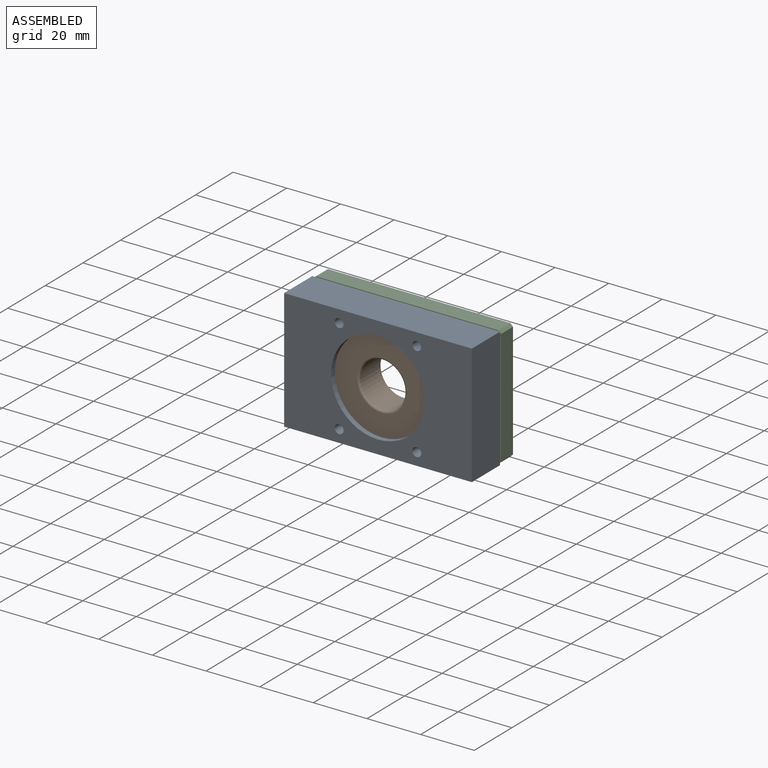
[diagram: assembled view]
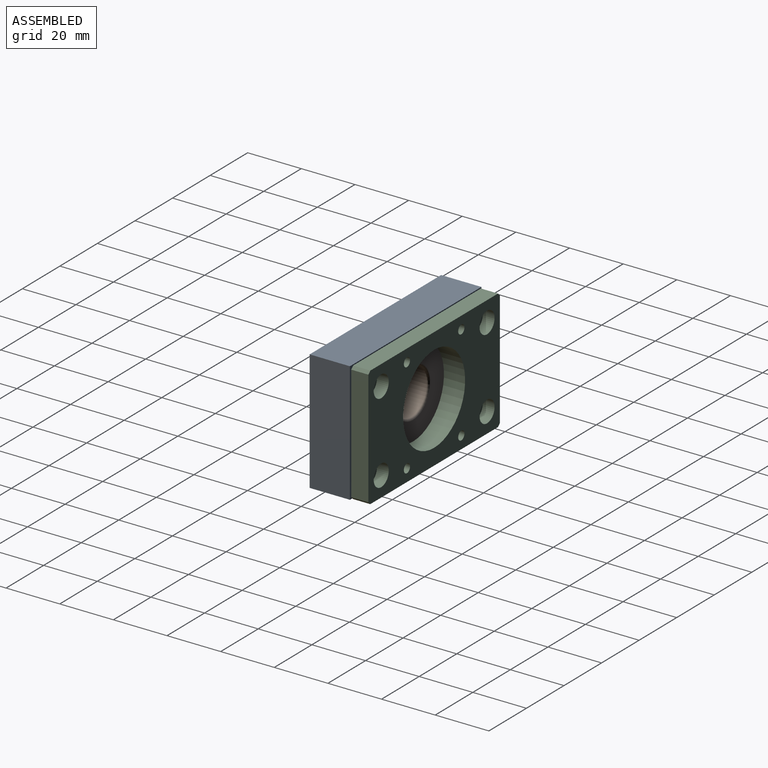
[diagram: assembled view, second angle]
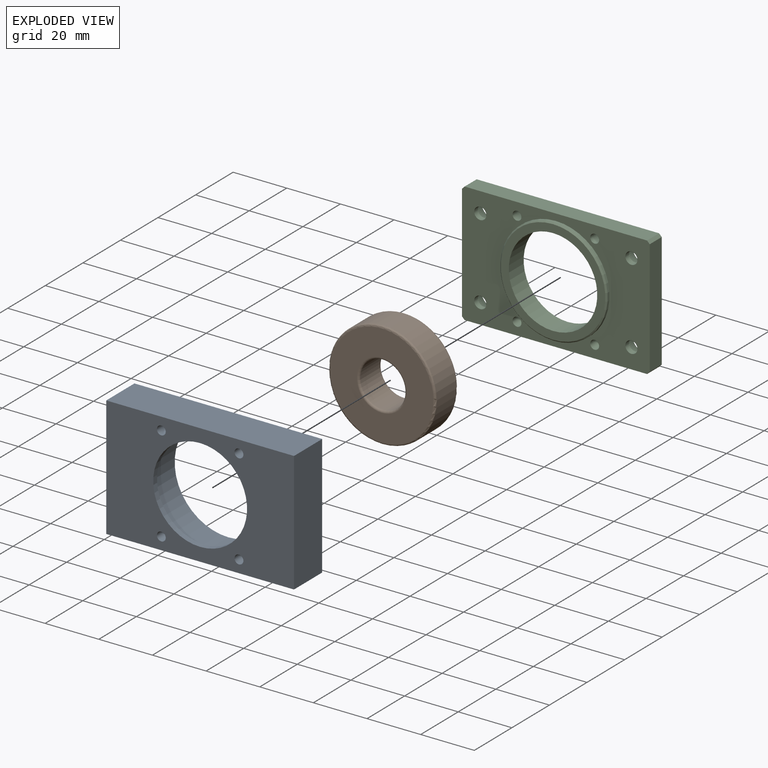
[diagram: exploded view]
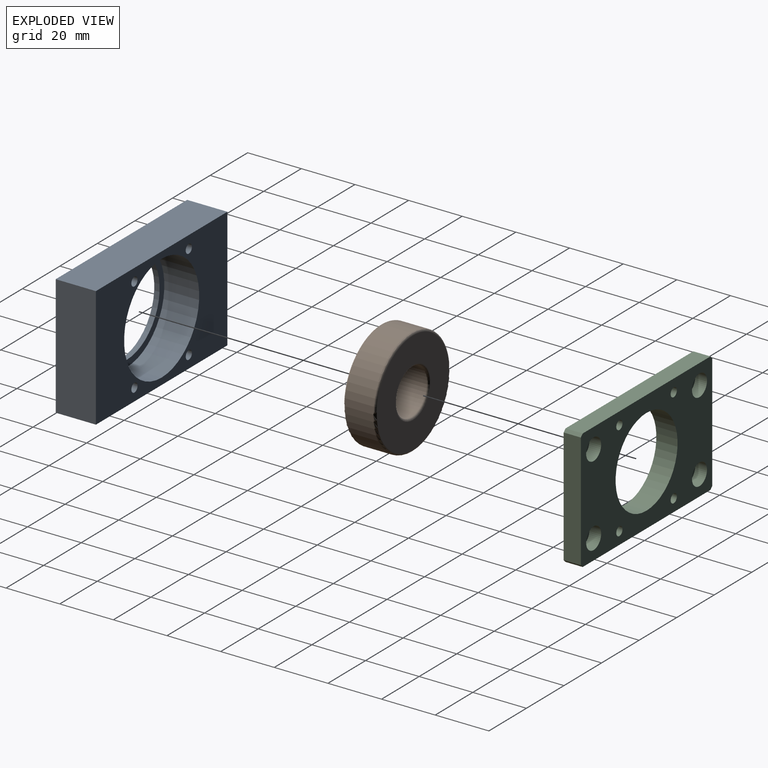
[diagram: exploded view, second angle]
ASSEMBLY  parts=3 mates=3
PART A: 13 faces, bbox 70x15x45 mm
  f0: plane 70x15mm, normal (0,0,-1), area 1050mm2, adj f1,f3,f4,f5
  f1: plane 45x15mm, normal (1,0,0), area 675mm2, adj f0,f2,f4,f5
  f2: plane 70x15mm, normal (0,0,1), area 1050mm2, adj f1,f3,f4,f5
  f3: plane 45x15mm, normal (-1,0,0), area 675mm2, adj f0,f2,f4,f5
  f4: plane 70x45mm, normal (0,-1,0), area 2153.7mm2, adj f0,f1,f2,f3,f8,f9,f10,f11
  f5: plane 70x45mm, normal (0,1,0), area 1859.2mm2, adj f0,f1,f2,f3,f6,f9,f10,f11
  f6: cylinder r=20mm len=40mm, axis (0,1,0), area 1633.6mm2, adj f5,f7
  f7: plane 40x40mm, normal (0,1,0), area 294.5mm2, adj f6,f8
  f8: cylinder r=17.5mm len=35mm, axis (0,1,0), area 219.9mm2, adj f4,f7
  f9: cylinder r=1.65mm len=15mm, axis (0,1,0), area 155.5mm2, adj f4,f5
  f10: cylinder r=1.65mm len=15mm, axis (0,1,0), area 155.5mm2, adj f4,f5
  f11: cylinder r=1.65mm len=15mm, axis (0,1,0), area 155.5mm2, adj f4,f5
  f12: cylinder r=1.65mm len=15mm, axis (0,1,0), area 155.5mm2, adj f4,f5
PART B: 8 faces, bbox 12x43.3x43.3 mm
  f0: cylinder r=20mm len=40mm, axis (-1,0,0), area 1306.9mm2, adj f4,f7
  f1: plane 38.4x38.4mm, normal (-1,0,0), area 886.4mm2, adj f4,f5
  f2: cylinder r=8.5mm len=17mm, axis (-1,0,0), area 555.4mm2, adj f5,f6
  f3: plane 38.4x38.4mm, normal (1,0,0), area 886.4mm2, adj f6,f7
  f4: torus R=19.2mm, axis (1,0,0), area 155.6mm2, adj f0,f1
  f5: torus R=9.3mm, axis (1,0,0), area 69.4mm2, adj f1,f2
  f6: torus R=9.3mm, axis (1,0,0), area 69.4mm2, adj f2,f3
  f7: torus R=19.2mm, axis (1,0,0), area 155.6mm2, adj f0,f3
PART C: 30 faces, bbox 70x7.9x45 mm
  f0: plane 43x6.4mm, normal (1,0,0), area 275.2mm2, adj f4,f5,f7,f8
  f1: plane 68x6.4mm, normal (0,0,1), area 435.2mm2, adj f4,f5,f6,f8
  f2: plane 43x6.4mm, normal (-1,0,0), area 275.2mm2, adj f4,f5,f6,f9
  f3: plane 68x6.4mm, normal (0,0,-1), area 435.2mm2, adj f4,f5,f7,f9
  f4: plane 70x45mm, normal (0,-1,0), area 1793.5mm2, adj f0,f1,f2,f3,f6,f7,f8,f9
  f5: plane 70x45mm, normal (0,1,0), area 2057.4mm2, adj f0,f1,f2,f3,f6,f7,f8,f9
  f6: plane 6.4x1mm, normal (-0.71,0,0.71), area 9.1mm2, adj f1,f2,f4,f5
  f7: plane 6.4x1mm, normal (0.71,0,-0.71), area 9.1mm2, adj f0,f3,f4,f5
  f8: plane 6.4x1mm, normal (0.71,0,0.71), area 9.1mm2, adj f0,f1,f4,f5
  f9: plane 6.4x1mm, normal (-0.71,0,-0.71), area 9.1mm2, adj f2,f3,f4,f5
  f10: cylinder r=20mm len=40mm, axis (0,1,0), area 125.7mm2, adj f4,f17
  f11: plane 39x39mm, normal (0,-1,0), area 339.3mm2, adj f12,f17
  f12: cylinder r=16.5mm len=33mm, axis (0,1,0), area 819mm2, adj f5,f11
  f13: cylinder r=1.65mm len=6.4mm, axis (0,1,0), area 66.4mm2, adj f4,f5
  f14: cylinder r=1.65mm len=6.4mm, axis (0,1,0), area 66.4mm2, adj f4,f5
  f15: cylinder r=1.65mm len=6.4mm, axis (0,1,0), area 66.4mm2, adj f4,f5
  f16: cylinder r=1.65mm len=6.4mm, axis (0,1,0), area 66.4mm2, adj f4,f5
  f17: cone r=19.5mm half-angle=45deg, axis (0,1,0), area 87.7mm2, adj f10,f11
  f18: cylinder r=2.25mm len=4.5mm, axis (0,1,0), area 28.3mm2, adj f4,f19
  f19: plane 8x8mm, normal (0,1,0), area 34.4mm2, adj f18,f20
  f20: cylinder r=4mm len=8mm, axis (0,1,0), area 110.6mm2, adj f5,f19
  f21: cylinder r=2.25mm len=4.5mm, axis (0,1,0), area 28.3mm2, adj f4,f22
  f22: plane 8x8mm, normal (0,1,0), area 34.4mm2, adj f21,f23
  f23: cylinder r=4mm len=8mm, axis (0,1,0), area 110.6mm2, adj f5,f22
  f24: cylinder r=2.25mm len=4.5mm, axis (0,1,0), area 28.3mm2, adj f4,f25
  f25: plane 8x8mm, normal (0,1,0), area 34.4mm2, adj f24,f26
  f26: cylinder r=4mm len=8mm, axis (0,1,0), area 110.6mm2, adj f5,f25
  f27: cylinder r=2.25mm len=4.5mm, axis (0,1,0), area 28.3mm2, adj f4,f28
  f28: plane 8x8mm, normal (0,1,0), area 34.4mm2, adj f27,f29
  f29: cylinder r=4mm len=8mm, axis (0,1,0), area 110.6mm2, adj f5,f28
PLACE A t=(-45.18,91.06,-94.1)mm
PLACE B rot(axis=(0,0,1),90deg) t=(-45.18,90.06,-94.1)mm
PLACE C t=(-45.18,97.96,-94.1)mm
MATE fastened C.f12 <-> B.f0  axis (0,-1,0) through (-45.18,90.06,-94.1)mm
MATE fastened B.f0 <-> A.f8  axis (0,-1,0) through (-45.18,78.06,-94.1)mm
MATE cylindrical B.f0 <-> A.f6  axis (0,1,0) through (-45.18,89.26,-94.1)mm
